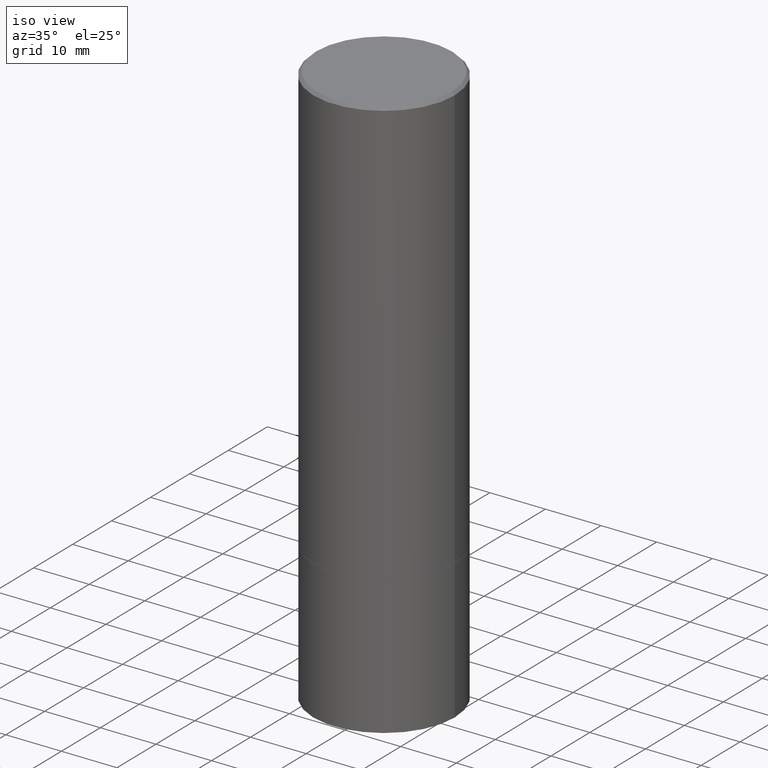
[diagram: clean part render]
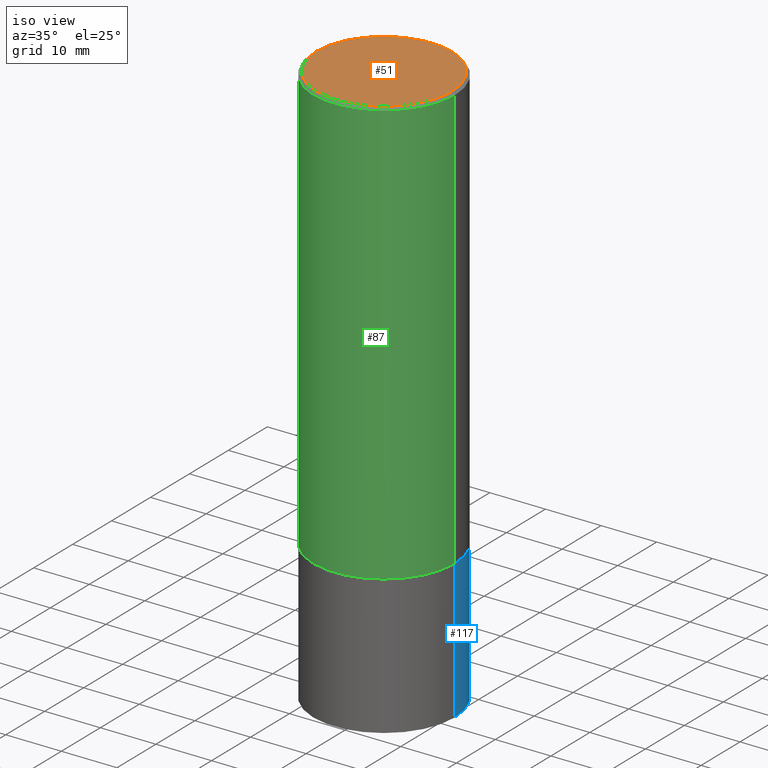
[diagram: same view with three faces highlighted in distinct colors, each labeled with its STEP entity id]
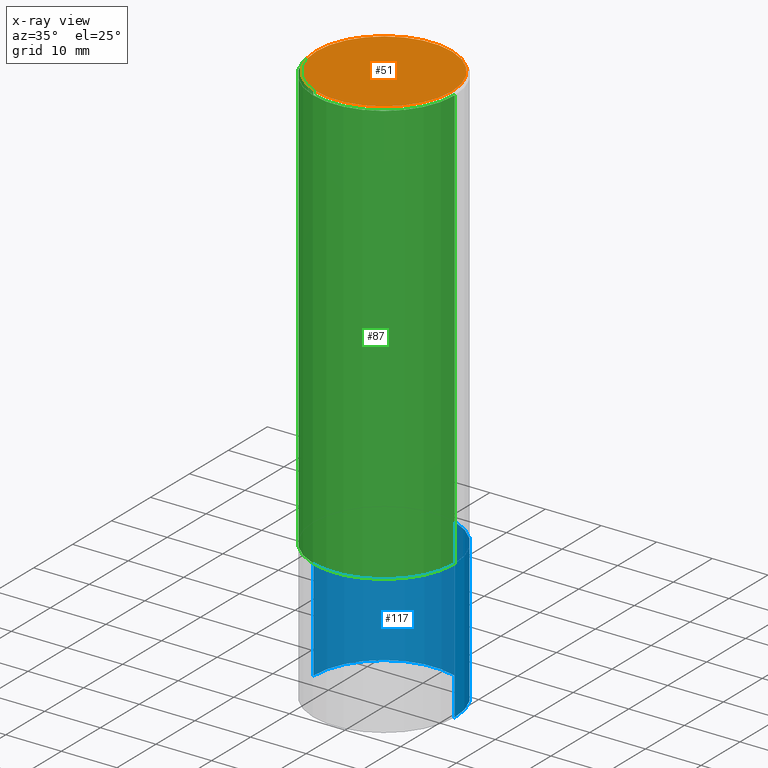
[diagram: x-ray of the same camera — body ghosted, the three highlighted faces saturated]
A machine part, iso view with three faces highlighted in distinct colors.
The next image is the same camera in x-ray (body ghosted, the three faces saturated) — at least one of them is partly hidden behind the body in this view.
Their STEP definitions:

[orange] entity #51 — the highlighted planar face has unit normal (0, -0, -1).
#51 = ADVANCED_FACE ( 'NONE', ( #92 ), #238, .F. ) ;
#73 = AXIS2_PLACEMENT_3D ( 'NONE', #271, #333, #338 ) ;
#92 = FACE_OUTER_BOUND ( 'NONE', #261, .T. ) ;
#94 = AXIS2_PLACEMENT_3D ( 'NONE', #129, #248, #188 ) ;
#96 = AXIS2_PLACEMENT_3D ( 'NONE', #363, #299, #327 ) ;
#104 = VERTEX_POINT ( 'NONE', #324 ) ;
#120 = EDGE_CURVE ( 'NONE', #104, #374, #297, .T. ) ;
#129 = CARTESIAN_POINT ( 'NONE',  ( -3.131554243005659264E-46, 4.471029511141341874E-32, 1.280553747030123384E-17 ) ) ;
#188 = DIRECTION ( 'NONE',  ( 1.000000000000000000, -6.982962677686266711E-15, 4.876036955247133327E-29 ) ) ;
#204 = ORIENTED_EDGE ( 'NONE', *, *, #211, .T. ) ;
#207 = CARTESIAN_POINT ( 'NONE',  ( 0.4799999999999995937, -3.396558832296479338E-15, 1.280553747032483033E-17 ) ) ;
#211 = EDGE_CURVE ( 'NONE', #374, #104, #264, .T. ) ;
#238 = PLANE ( 'NONE',  #96 ) ;
#248 = DIRECTION ( 'NONE',  ( -2.445468806185136597E-29, 3.491481338843145583E-15, 1.000000000000000000 ) ) ;
#261 = EDGE_LOOP ( 'NONE', ( #291, #204 ) ) ;
#264 = CIRCLE ( 'NONE', #94, 0.4799999999999995937 ) ;
#271 = CARTESIAN_POINT ( 'NONE',  ( -3.131554243005659264E-46, 4.471029511141341874E-32, 1.280553747030123384E-17 ) ) ;
#291 = ORIENTED_EDGE ( 'NONE', *, *, #120, .T. ) ;
#297 = CIRCLE ( 'NONE', #73, 0.4799999999999995937 ) ;
#299 = DIRECTION ( 'NONE',  ( 2.438088387897960049E-29, -3.491481338843145188E-15, -1.000000000000000000 ) ) ;
#324 = CARTESIAN_POINT ( 'NONE',  ( -0.4799999999999995937, 3.386736898677836436E-15, 1.280553747027767124E-17 ) ) ;
#327 = DIRECTION ( 'NONE',  ( -1.000000000000000000, 6.982962677686265922E-15, -4.876176775795935793E-29 ) ) ;
#333 = DIRECTION ( 'NONE',  ( -2.445468806185136597E-29, 3.491481338843145583E-15, 1.000000000000000000 ) ) ;
#338 = DIRECTION ( 'NONE',  ( 1.000000000000000000, -6.982962677686266711E-15, 4.876036955247133327E-29 ) ) ;
#363 = CARTESIAN_POINT ( 'NONE',  ( 3.351822085289404787E-15, 0.4799999999999995937, -1.669508273909557867E-15 ) ) ;
#374 = VERTEX_POINT ( 'NONE', #207 ) ;

[blue] entity #117 — the highlighted cylindrical surface (partial cylindrical patch) has radius 12.7 mm, axis along (-0, 0, 1).
#3 = EDGE_CURVE ( 'NONE', #346, #46, #5, .T. ) ;
#5 = CIRCLE ( 'NONE', #216, 0.5000000000000000000 ) ;
#28 = FACE_OUTER_BOUND ( 'NONE', #88, .T. ) ;
#30 = DIRECTION ( 'NONE',  ( 1.000000000000000000, -6.982962677686266711E-15, 0.000000000000000000 ) ) ;
#46 = VERTEX_POINT ( 'NONE', #147 ) ;
#50 = ORIENTED_EDGE ( 'NONE', *, *, #102, .T. ) ;
#56 = AXIS2_PLACEMENT_3D ( 'NONE', #236, #262, #359 ) ;
#58 = DIRECTION ( 'NONE',  ( -2.445468806185136877E-29, 3.491481338843145188E-15, 1.000000000000000000 ) ) ;
#60 = DIRECTION ( 'NONE',  ( -2.445468806185136597E-29, 3.491481338843145583E-15, 1.000000000000000000 ) ) ;
#88 = EDGE_LOOP ( 'NONE', ( #197, #50, #135, #175 ) ) ;
#102 = EDGE_CURVE ( 'NONE', #46, #288, #237, .T. ) ;
#107 = EDGE_CURVE ( 'NONE', #200, #288, #198, .T. ) ;
#117 = ADVANCED_FACE ( 'NONE', ( #28 ), #303, .T. ) ;
#135 = ORIENTED_EDGE ( 'NONE', *, *, #107, .F. ) ;
#147 = CARTESIAN_POINT ( 'NONE',  ( -0.5000000000000026645, -1.047444401652943162E-14, -4.000000000000000000 ) ) ;
#160 = CARTESIAN_POINT ( 'NONE',  ( 0.5000000000000000000, -3.491481338843133355E-15, 2.438088387897967896E-29 ) ) ;
#175 = ORIENTED_EDGE ( 'NONE', *, *, #241, .F. ) ;
#180 = DIRECTION ( 'NONE',  ( -2.445468806185136597E-29, 3.491481338843145583E-15, 1.000000000000000000 ) ) ;
#183 = CARTESIAN_POINT ( 'NONE',  ( 7.374800278812517479E-29, -1.052926027354927551E-14, -3.015700000000000269 ) ) ;
#184 = CARTESIAN_POINT ( 'NONE',  ( 9.781875224740546387E-29, -1.396592535537258233E-14, -4.000000000000000000 ) ) ;
#197 = ORIENTED_EDGE ( 'NONE', *, *, #3, .T. ) ;
#198 = CIRCLE ( 'NONE', #342, 0.5000000000000000000 ) ;
#200 = VERTEX_POINT ( 'NONE', #336 ) ;
#205 = CARTESIAN_POINT ( 'NONE',  ( 0.5000000000000026645, -1.739617435425836547E-14, -4.000000000000000000 ) ) ;
#210 = CARTESIAN_POINT ( 'NONE',  ( -0.5000000000000000000, 3.552713678800500929E-15, -2.459467545127452891E-29 ) ) ;
#216 = AXIS2_PLACEMENT_3D ( 'NONE', #184, #180, #322 ) ;
#222 = DIRECTION ( 'NONE',  ( -2.445468806185136877E-29, 3.491481338843145188E-15, 1.000000000000000000 ) ) ;
#236 = CARTESIAN_POINT ( 'NONE',  ( 0.000000000000000000, 0.000000000000000000, 0.000000000000000000 ) ) ;
#237 = LINE ( 'NONE', #210, #367 ) ;
#239 = VECTOR ( 'NONE', #222, 39.37007874015748143 ) ;
#241 = EDGE_CURVE ( 'NONE', #346, #200, #372, .T. ) ;
#262 = DIRECTION ( 'NONE',  ( -2.445468806185136597E-29, 3.491481338843145583E-15, 1.000000000000000000 ) ) ;
#288 = VERTEX_POINT ( 'NONE', #368 ) ;
#303 = CYLINDRICAL_SURFACE ( 'NONE', #56, 0.5000000000000000000 ) ;
#322 = DIRECTION ( 'NONE',  ( 1.000000000000000000, -6.982962677686266711E-15, 0.000000000000000000 ) ) ;
#336 = CARTESIAN_POINT ( 'NONE',  ( 0.5000000000000000000, -1.402074161239240887E-14, -3.015700000000000269 ) ) ;
#342 = AXIS2_PLACEMENT_3D ( 'NONE', #183, #60, #30 ) ;
#346 = VERTEX_POINT ( 'NONE', #205 ) ;
#359 = DIRECTION ( 'NONE',  ( 1.000000000000000000, -6.982962677686266711E-15, 4.876176775795935793E-29 ) ) ;
#367 = VECTOR ( 'NONE', #58, 39.37007874015748143 ) ;
#368 = CARTESIAN_POINT ( 'NONE',  ( -0.5000000000000000000, -8.694879135660427991E-15, -3.015700000000000269 ) ) ;
#372 = LINE ( 'NONE', #160, #239 ) ;

[green] entity #87 — the highlighted cylindrical surface (partial cylindrical patch) has radius 12.7 mm, axis along (-0, 0, 1).
#4 = CARTESIAN_POINT ( 'NONE',  ( 0.000000000000000000, 0.000000000000000000, 0.000000000000000000 ) ) ;
#23 = VERTEX_POINT ( 'NONE', #57 ) ;
#34 = CARTESIAN_POINT ( 'NONE',  ( 4.890937612370302060E-31, -6.982962677686331052E-17, -0.02000000000000011491 ) ) ;
#38 = CARTESIAN_POINT ( 'NONE',  ( 7.372354810006331876E-29, -1.052576879221043250E-14, -3.014700000000000379 ) ) ;
#57 = CARTESIAN_POINT ( 'NONE',  ( 0.5000000000000000000, -1.401725013105356586E-14, -3.014700000000000379 ) ) ;
#67 = LINE ( 'NONE', #277, #162 ) ;
#71 = EDGE_CURVE ( 'NONE', #23, #148, #118, .T. ) ;
#75 = VERTEX_POINT ( 'NONE', #330 ) ;
#79 = ORIENTED_EDGE ( 'NONE', *, *, #298, .F. ) ;
#85 = AXIS2_PLACEMENT_3D ( 'NONE', #34, #189, #157 ) ;
#86 = CYLINDRICAL_SURFACE ( 'NONE', #331, 0.4999999999999997780 ) ;
#87 = ADVANCED_FACE ( 'NONE', ( #390 ), #86, .T. ) ;
#101 = CARTESIAN_POINT ( 'NONE',  ( -0.5000000000000000000, -1.745085530693144802E-15, -3.014700000000000379 ) ) ;
#108 = ORIENTED_EDGE ( 'NONE', *, *, #177, .F. ) ;
#110 = AXIS2_PLACEMENT_3D ( 'NONE', #38, #191, #304 ) ;
#112 = CIRCLE ( 'NONE', #85, 0.4999999999999996114 ) ;
#118 = LINE ( 'NONE', #295, #145 ) ;
#119 = DIRECTION ( 'NONE',  ( -2.445468806185136597E-29, 3.491481338843145583E-15, 1.000000000000000000 ) ) ;
#145 = VECTOR ( 'NONE', #266, 39.37007874015748143 ) ;
#148 = VERTEX_POINT ( 'NONE', #193 ) ;
#157 = DIRECTION ( 'NONE',  ( 1.000000000000000000, -6.982962677686266711E-15, 0.000000000000000000 ) ) ;
#162 = VECTOR ( 'NONE', #272, 39.37007874015748143 ) ;
#177 = EDGE_CURVE ( 'NONE', #206, #75, #67, .T. ) ;
#189 = DIRECTION ( 'NONE',  ( -2.445468806185136597E-29, 3.491481338843145583E-15, 1.000000000000000000 ) ) ;
#191 = DIRECTION ( 'NONE',  ( -2.445468806185136597E-29, 3.491481338843145583E-15, 1.000000000000000000 ) ) ;
#193 = CARTESIAN_POINT ( 'NONE',  ( 0.4999999999999996114, -3.500078625662626318E-15, -0.02000000000000011491 ) ) ;
#206 = VERTEX_POINT ( 'NONE', #101 ) ;
#208 = ORIENTED_EDGE ( 'NONE', *, *, #225, .T. ) ;
#209 = ORIENTED_EDGE ( 'NONE', *, *, #71, .T. ) ;
#225 = EDGE_CURVE ( 'NONE', #206, #23, #388, .T. ) ;
#266 = DIRECTION ( 'NONE',  ( -2.445468806185136877E-29, 3.491481338843145188E-15, 1.000000000000000000 ) ) ;
#272 = DIRECTION ( 'NONE',  ( -2.445468806185136877E-29, 3.491481338843145188E-15, 1.000000000000000000 ) ) ;
#277 = CARTESIAN_POINT ( 'NONE',  ( -0.4999999999999997780, 3.552713678800499352E-15, -2.459467545127452050E-29 ) ) ;
#280 = EDGE_LOOP ( 'NONE', ( #108, #208, #209, #79 ) ) ;
#295 = CARTESIAN_POINT ( 'NONE',  ( 0.4999999999999997780, -3.491481338843131778E-15, 2.438088387897966775E-29 ) ) ;
#298 = EDGE_CURVE ( 'NONE', #75, #148, #112, .T. ) ;
#304 = DIRECTION ( 'NONE',  ( 1.000000000000000000, -6.982962677686266711E-15, 0.000000000000000000 ) ) ;
#330 = CARTESIAN_POINT ( 'NONE',  ( -0.4999999999999996114, 3.421651712066267296E-15, -0.02000000000000011491 ) ) ;
#331 = AXIS2_PLACEMENT_3D ( 'NONE', #4, #119, #357 ) ;
#357 = DIRECTION ( 'NONE',  ( 1.000000000000000000, -6.982962677686266711E-15, 4.876176775795935793E-29 ) ) ;
#388 = CIRCLE ( 'NONE', #110, 0.5000000000000000000 ) ;
#390 = FACE_OUTER_BOUND ( 'NONE', #280, .T. ) ;